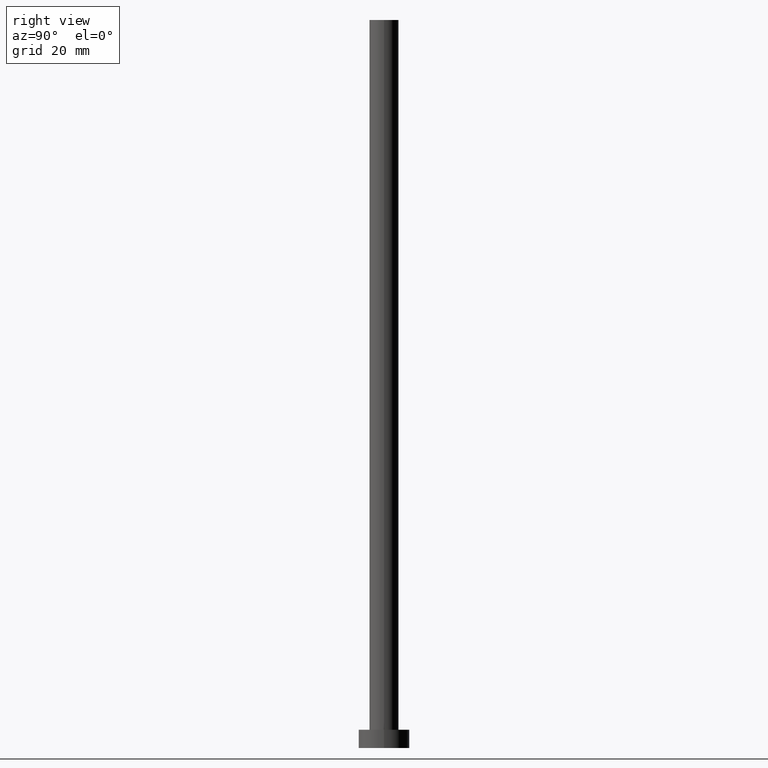
[diagram: clean part render]
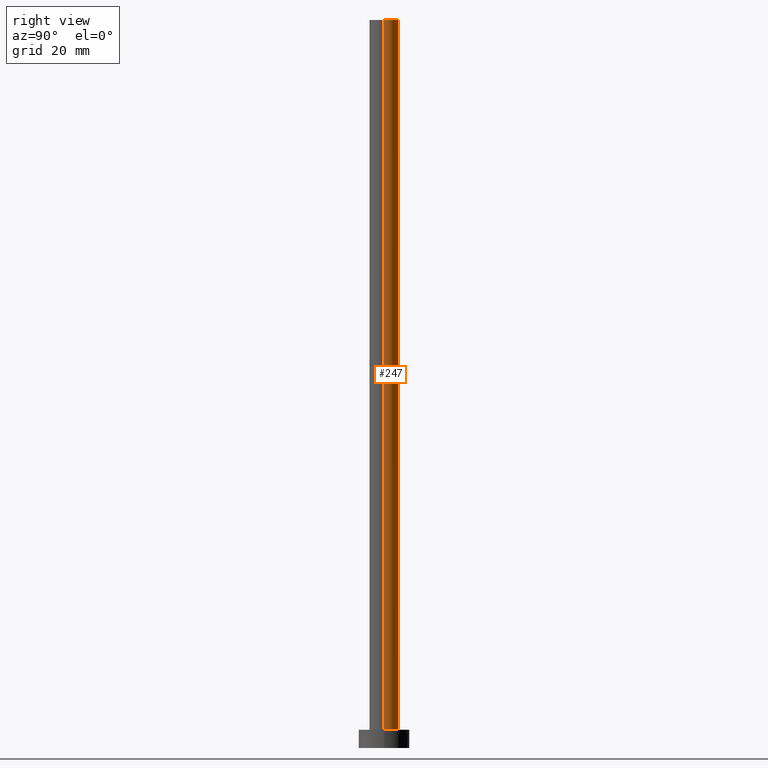
[diagram: same view with one face highlighted and labeled with its STEP entity id]
A machine part, right view. The second image highlights one B-rep face of the part: STEP entity #247.
In plain terms, the highlighted cylindrical surface (edge-blend (fillet) strip) has radius 4 mm, axis along (-0, -0, -1).
Its self-contained STEP definition (entity closure, byte-faithful):
#6 = CARTESIAN_POINT ( 'NONE',  ( 4.000000000000000000, 4.898587196589412829E-16, 5.000000000000000000 ) ) ;
#8 = CARTESIAN_POINT ( 'NONE',  ( 0.000000000000000000, 0.000000000000000000, 5.000000000000000000 ) ) ;
#10 = DIRECTION ( 'NONE',  ( 1.000000000000000000, 0.000000000000000000, 0.000000000000000000 ) ) ;
#12 = DIRECTION ( 'NONE',  ( -0.000000000000000000, -0.000000000000000000, -1.000000000000000000 ) ) ;
#32 = EDGE_CURVE ( 'NONE', #165, #100, #215, .T. ) ;
#44 = DIRECTION ( 'NONE',  ( -0.000000000000000000, -0.000000000000000000, -1.000000000000000000 ) ) ;
#46 = CARTESIAN_POINT ( 'NONE',  ( 4.000000000000000000, 4.898587196589412829E-16, 200.0000000000000000 ) ) ;
#54 = CIRCLE ( 'NONE', #115, 4.000000000000000000 ) ;
#57 = ORIENTED_EDGE ( 'NONE', *, *, #77, .F. ) ;
#65 = VECTOR ( 'NONE', #44, 1000.000000000000000 ) ;
#66 = EDGE_CURVE ( 'NONE', #171, #255, #141, .T. ) ;
#72 = DIRECTION ( 'NONE',  ( 1.000000000000000000, 0.000000000000000000, 0.000000000000000000 ) ) ;
#73 = CIRCLE ( 'NONE', #205, 4.000000000000000000 ) ;
#77 = EDGE_CURVE ( 'NONE', #165, #171, #54, .T. ) ;
#78 = CARTESIAN_POINT ( 'NONE',  ( -4.000000000000000000, 0.000000000000000000, 5.000000000000000000 ) ) ;
#85 = CARTESIAN_POINT ( 'NONE',  ( 0.000000000000000000, 0.000000000000000000, 200.0000000000000000 ) ) ;
#93 = FACE_OUTER_BOUND ( 'NONE', #134, .T. ) ;
#100 = VERTEX_POINT ( 'NONE', #6 ) ;
#108 = DIRECTION ( 'NONE',  ( 0.000000000000000000, 0.000000000000000000, 1.000000000000000000 ) ) ;
#109 = CARTESIAN_POINT ( 'NONE',  ( -4.000000000000000000, 0.000000000000000000, 200.0000000000000000 ) ) ;
#110 = AXIS2_PLACEMENT_3D ( 'NONE', #112, #12, #246 ) ;
#112 = CARTESIAN_POINT ( 'NONE',  ( 0.000000000000000000, 0.000000000000000000, 200.0000000000000000 ) ) ;
#115 = AXIS2_PLACEMENT_3D ( 'NONE', #85, #241, #72 ) ;
#134 = EDGE_LOOP ( 'NONE', ( #57, #170, #140, #253 ) ) ;
#140 = ORIENTED_EDGE ( 'NONE', *, *, #231, .T. ) ;
#141 = LINE ( 'NONE', #220, #65 ) ;
#155 = CARTESIAN_POINT ( 'NONE',  ( 4.000000000000000000, 4.898587196589412829E-16, 200.0000000000000000 ) ) ;
#165 = VERTEX_POINT ( 'NONE', #46 ) ;
#167 = VECTOR ( 'NONE', #222, 1000.000000000000000 ) ;
#170 = ORIENTED_EDGE ( 'NONE', *, *, #32, .T. ) ;
#171 = VERTEX_POINT ( 'NONE', #109 ) ;
#205 = AXIS2_PLACEMENT_3D ( 'NONE', #8, #108, #10 ) ;
#215 = LINE ( 'NONE', #155, #167 ) ;
#220 = CARTESIAN_POINT ( 'NONE',  ( -4.000000000000000000, 0.000000000000000000, 200.0000000000000000 ) ) ;
#222 = DIRECTION ( 'NONE',  ( -0.000000000000000000, -0.000000000000000000, -1.000000000000000000 ) ) ;
#231 = EDGE_CURVE ( 'NONE', #100, #255, #73, .T. ) ;
#241 = DIRECTION ( 'NONE',  ( 0.000000000000000000, 0.000000000000000000, 1.000000000000000000 ) ) ;
#245 = CYLINDRICAL_SURFACE ( 'NONE', #110, 4.000000000000000000 ) ;
#246 = DIRECTION ( 'NONE',  ( -1.000000000000000000, 0.000000000000000000, 0.000000000000000000 ) ) ;
#247 = ADVANCED_FACE ( 'NONE', ( #93 ), #245, .T. ) ;
#253 = ORIENTED_EDGE ( 'NONE', *, *, #66, .F. ) ;
#255 = VERTEX_POINT ( 'NONE', #78 ) ;